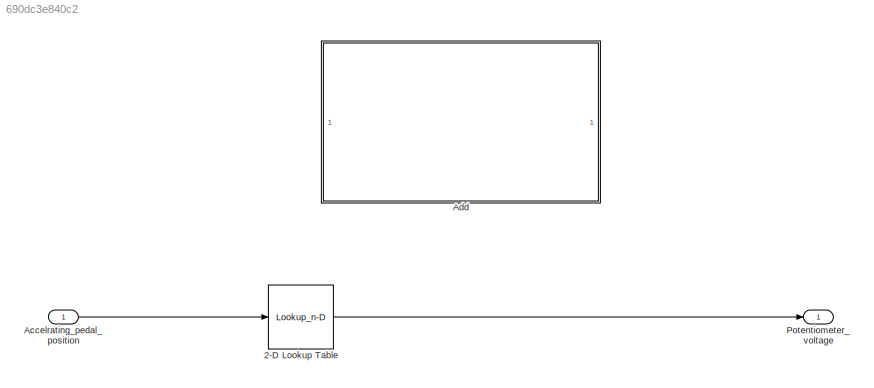
MODEL slx_690dc3e840c2
KIND model
CONFIG AbsTol = auto
CONFIG EnableMultiTasking = off
CONFIG FixedStep = auto
CONFIG MaxStep = auto
CONFIG MinStep = auto
CONFIG PreLoadFcn = data
CONFIG RelTol = 1e-3
CONFIG SampleTimeConstraint = Unconstrained
CONFIG SolverName = VariableStepAuto
CONFIG StartTime = 0.0
CONFIG StopFcn = drawing
CONFIG StopTime = 10.0
BLOCK [Lookup_n-D] 2-D Lookup Table
  BreakpointsForDimension1 = [0,0.1,0.2,0.3,0.4,0.5,0.6,0.7,0.8,0.9,1]
  BreakpointsForDimension2 = [1:3]
  InputPortMap = u0
  InternalRulePriority = Speed
  NumberOfTableDimensions = 1
  Ports = [1, 1]
  RndMeth = Simplest
  Table = [4.5,4.1,3.7,3.3,2.9,2.5,2.1,1.7,1.3,0.9,0.5]
BLOCK [Inport] Accelrating_pedal_position
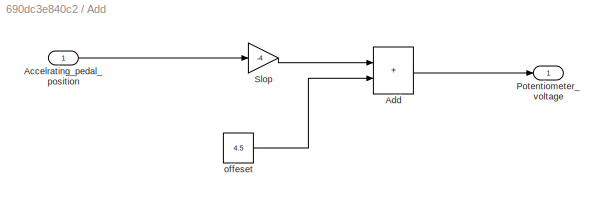
BLOCK [SubSystem] Add
  Commented = on
  Ports = [1, 1]
  RequestExecContextInheritance = off
BLOCK [Inport] Add/Accelrating_pedal_position
BLOCK [Sum] Add/Add
  IconShape = rectangular
  Ports = [2, 1]
BLOCK [Outport] Add/Potentiometer_voltage
BLOCK [Gain] Add/Slop
  Gain = -4
BLOCK [Constant] Add/offeset
  Value = 4.5
BLOCK [Outport] Potentiometer_voltage
LINE 2-D Lookup Table:1 -> Potentiometer_voltage:1
LINE Accelrating_pedal_position:1 -> 2-D Lookup Table:1
LINE Add/Accelrating_pedal_position:1 -> Add/Slop:1
LINE Add/Add:1 -> Add/Potentiometer_voltage:1
LINE Add/Slop:1 -> Add/Add:1
LINE Add/offeset:1 -> Add/Add:2
